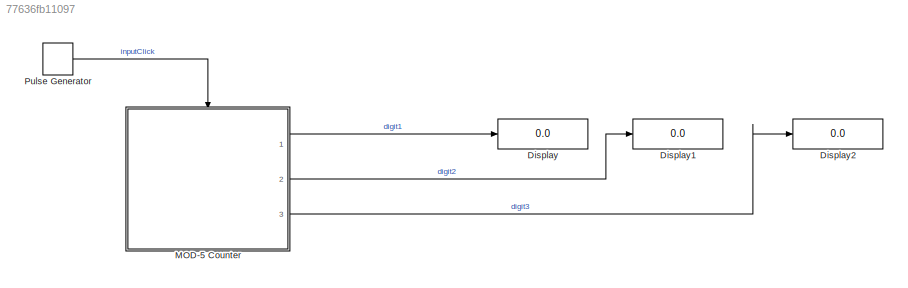
MODEL slx_77636fb11097
KIND model
CONFIG AbsTol = auto
CONFIG EnableMultiTasking = off
CONFIG FixedStep = auto
CONFIG MaxStep = auto
CONFIG MinStep = auto
CONFIG RelTol = 1e-3
CONFIG SampleTimeConstraint = Unconstrained
CONFIG SolverName = VariableStepAuto
CONFIG StartTime = 0.0
CONFIG StopTime = inf
BLOCK [Display]  Display
  Decimation = 1
  Ports = [1]
BLOCK [Display]  Display1
  Decimation = 1
  Ports = [1]
BLOCK [Display]  Display2
  Decimation = 1
  Ports = [1]
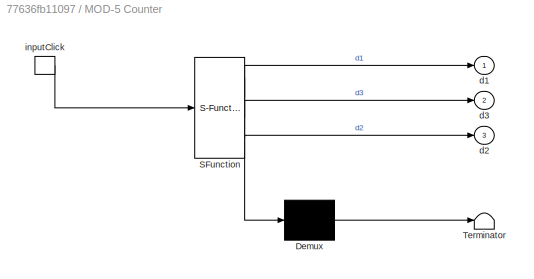
BLOCK [SubSystem] MOD-5 Counter
  ErrorFcn = Stateflow.Translate.translate
  PermitHierarchicalResolution = ExplicitOnly
  Ports = [0, 3, 0, 1]
  RequestExecContextInheritance = off
  SFBlockType = Chart
  TreatAsAtomicUnit = on
BLOCK [Demux] MOD-5 Counter/ Demux 
  Outputs = 1
  Ports = [1, 1]
BLOCK [S-Function] MOD-5 Counter/ SFunction 
  EnableBusSupport = on
  FunctionName = sf_sfun
  PortCounts = [1 4]
  Ports = [1, 4]
  SFcnIsStateOwnerBlock = off
  SFunctionDeploymentMode = off
  Tag = Stateflow S-Function 3
BLOCK [Terminator] MOD-5 Counter/ Terminator 
BLOCK [Outport] MOD-5 Counter/d1
BLOCK [Outport] MOD-5 Counter/d2
  Port = 3
BLOCK [Outport] MOD-5 Counter/d3
  Port = 2
BLOCK [TriggerPort] MOD-5 Counter/inputClick
  Ports = [0, 1]
  ShowOutputPort = on
  StatesWhenEnabling = held
  VariantControl = (inherit)
BLOCK [DiscretePulseGenerator] Pulse Generator
  Period = 10
  Ports = [0, 1]
  PulseType = Time based
  PulseWidth = 5
LINE MOD-5 Counter:1 ->  Display:1
LINE MOD-5 Counter:2 ->  Display1:1
LINE MOD-5 Counter:3 ->  Display2:1
LINE Pulse Generator:1 -> MOD-5 Counter:trigger
CHART MOD-5 Counter states=18 transitions=18
  STATE_LABEL 'digit1'
  STATE_LABEL 'two\nen: d1 = 2;'
  STATE_LABEL 'one\nen: d1 = 1;'
  STATE_LABEL 'three\nen:d1=3;'
  STATE_LABEL 'zero\nen: d1 = 0;'
  STATE_LABEL 'four\nen:d1=4;'
  STATE_LABEL 'inputClick'
  STATE_LABEL 'inputClick'
  STATE_LABEL 'inputClick'
  STATE_LABEL 'inputClick'
  STATE_LABEL 'inputClick /{digit2.inc2;}'
  STATE_LABEL 'two\nen: d1 = 2;'
  STATE_LABEL 'one\nen: d1 = 1;'
  STATE_LABEL 'three\nen:d1=3;'
  STATE_LABEL 'zero\nen: d1 = 0;'
  STATE_LABEL 'four\nen:d1=4;'
  STATE_LABEL 'digit2'
  STATE_LABEL 'two\nen: d2 = 2;'
  STATE_LABEL 'one\nen: d2 = 1;'
  STATE_LABEL 'three\nen: d2=3;'
  STATE_LABEL 'zero\nen: d2 = 0;'
  STATE_LABEL 'four\nen: d2=4;'
  STATE_LABEL 'inc2'
  STATE_LABEL 'inc2'
  STATE_LABEL 'inc2'
  STATE_LABEL 'inc2'
  STATE_LABEL 'inc2{digit3.inc3;}'
  STATE_LABEL 'two\nen: d2 = 2;'
  STATE_LABEL 'one\nen: d2 = 1;'
  STATE_LABEL 'three\nen: d2=3;'
  STATE_LABEL 'zero\nen: d2 = 0;'
  STATE_LABEL 'four\nen: d2=4;'
  STATE_LABEL 'digit3'
  STATE_LABEL 'three\nen: d3=3;'
  STATE_LABEL 'two\nen: d3 = 2;'
  STATE_LABEL 'one\nen: d3 = 1;'
  STATE_LABEL 'four\nen: d3=4;'
  STATE_LABEL 'zero\nen: d3 = 0;'
  STATE_LABEL 'inc3'
  STATE_LABEL 'inc3'
CHART  states=0 transitions=0
